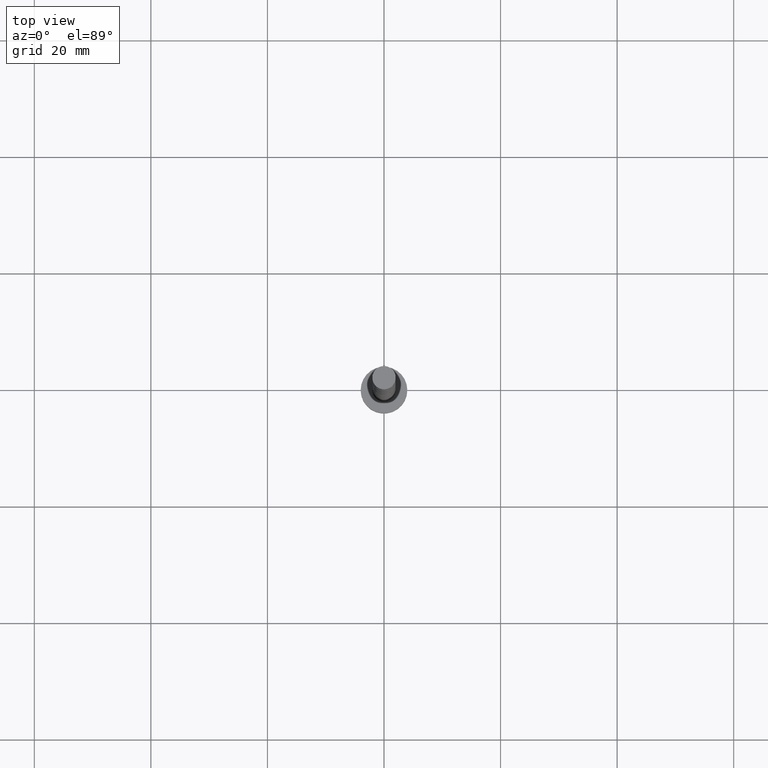
[diagram: clean part render]
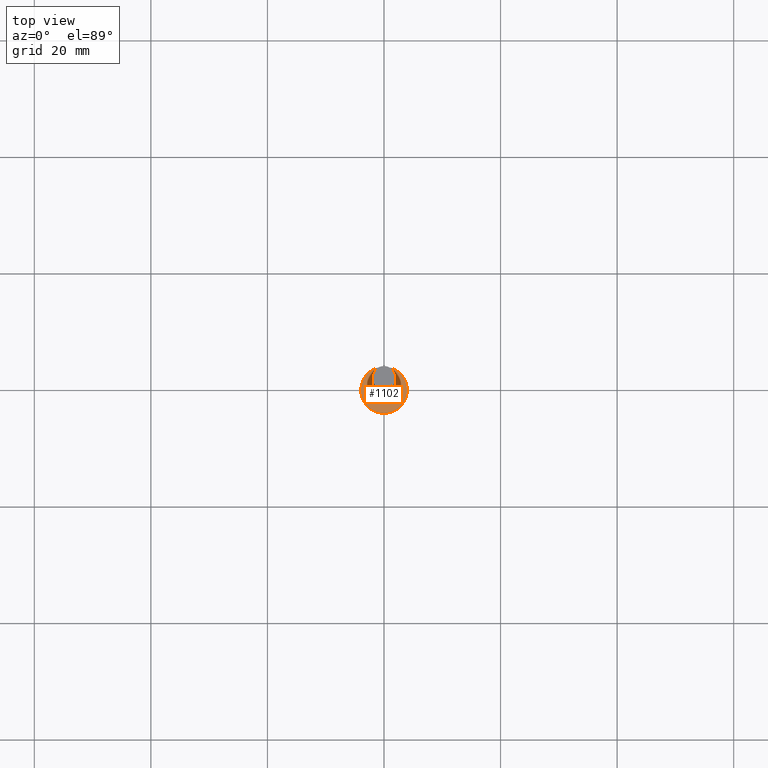
[diagram: same view with one face highlighted and labeled with its STEP entity id]
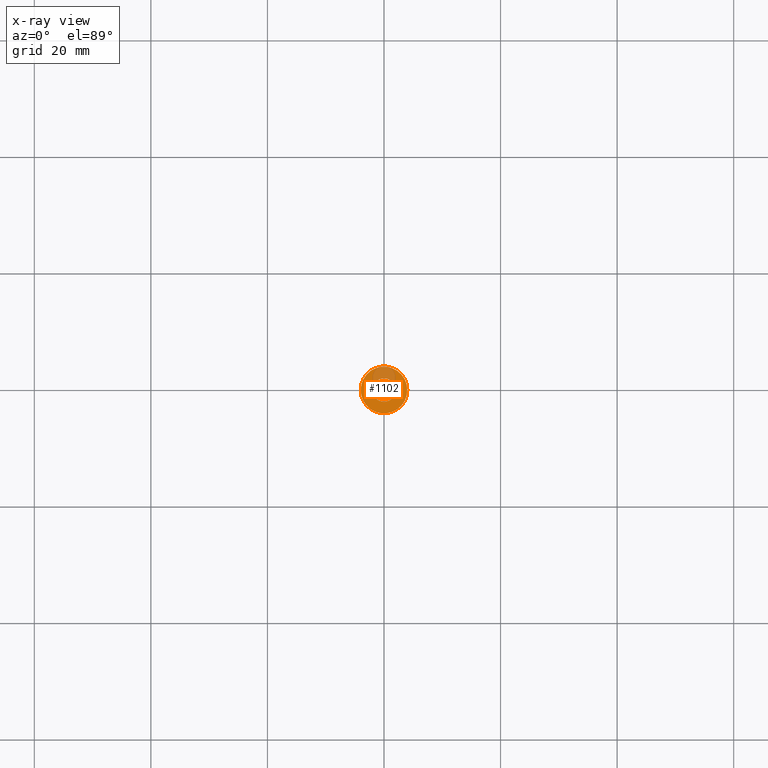
[diagram: x-ray of the same camera — body ghosted, the highlighted face saturated]
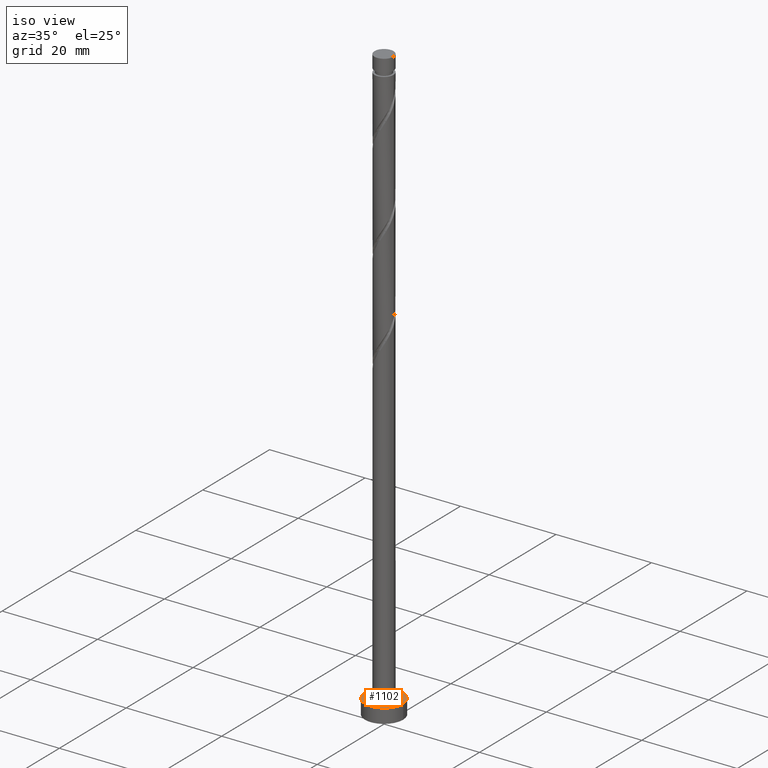
[diagram: same view with one face highlighted and labeled with its STEP entity id]
A machine part, top view. The second image highlights one B-rep face of the part: STEP entity #1102.
The next image is the same camera in x-ray: the body ghosted, the highlighted face saturated — about 22% of this face is hidden behind the body in this view.
A second angle (iso view) of the same face is appended — the face is thin or edge-on in the first view.
In plain terms, the highlighted planar face has unit normal (0, 0, 1).
Its self-contained STEP definition (entity closure, byte-faithful):
#6 = VERTEX_POINT ( 'NONE', #852 ) ;
#22 = DIRECTION ( 'NONE',  ( 1.000000000000000000, 0.000000000000000000, -0.000000000000000000 ) ) ;
#44 = CARTESIAN_POINT ( 'NONE',  ( 2.000000000000000000, 2.449293598294705921E-16, 3.000000000000000000 ) ) ;
#102 = EDGE_CURVE ( 'NONE', #184, #6, #376, .T. ) ;
#123 = ORIENTED_EDGE ( 'NONE', *, *, #696, .F. ) ;
#137 = EDGE_CURVE ( 'NONE', #1291, #1518, #1290, .T. ) ;
#155 = DIRECTION ( 'NONE',  ( 0.000000000000000000, 0.000000000000000000, 1.000000000000000000 ) ) ;
#184 = VERTEX_POINT ( 'NONE', #1333 ) ;
#204 = AXIS2_PLACEMENT_3D ( 'NONE', #519, #1367, #390 ) ;
#309 = ORIENTED_EDGE ( 'NONE', *, *, #137, .F. ) ;
#330 = ORIENTED_EDGE ( 'NONE', *, *, #102, .T. ) ;
#372 = CARTESIAN_POINT ( 'NONE',  ( 0.000000000000000000, 0.000000000000000000, 3.000000000000000000 ) ) ;
#376 = CIRCLE ( 'NONE', #1182, 4.000000000000000000 ) ;
#390 = DIRECTION ( 'NONE',  ( 1.000000000000000000, 0.000000000000000000, 0.000000000000000000 ) ) ;
#402 = EDGE_CURVE ( 'NONE', #6, #184, #480, .T. ) ;
#480 = CIRCLE ( 'NONE', #900, 4.000000000000000000 ) ;
#503 = DIRECTION ( 'NONE',  ( 1.000000000000000000, 0.000000000000000000, 0.000000000000000000 ) ) ;
#511 = FACE_OUTER_BOUND ( 'NONE', #1080, .T. ) ;
#519 = CARTESIAN_POINT ( 'NONE',  ( 0.000000000000000000, 0.000000000000000000, 3.000000000000000000 ) ) ;
#562 = DIRECTION ( 'NONE',  ( 0.000000000000000000, 0.000000000000000000, 1.000000000000000000 ) ) ;
#579 = AXIS2_PLACEMENT_3D ( 'NONE', #1479, #155, #1126 ) ;
#684 = CARTESIAN_POINT ( 'NONE',  ( 0.000000000000000000, 0.000000000000000000, 3.000000000000000000 ) ) ;
#696 = EDGE_CURVE ( 'NONE', #1518, #1291, #1214, .T. ) ;
#791 = CARTESIAN_POINT ( 'NONE',  ( -2.000000000000000000, 0.000000000000000000, 3.000000000000000000 ) ) ;
#846 = DIRECTION ( 'NONE',  ( 0.000000000000000000, 0.000000000000000000, 1.000000000000000000 ) ) ;
#852 = CARTESIAN_POINT ( 'NONE',  ( -4.000000000000000000, 0.000000000000000000, 3.000000000000000000 ) ) ;
#863 = DIRECTION ( 'NONE',  ( 0.000000000000000000, 0.000000000000000000, 1.000000000000000000 ) ) ;
#869 = EDGE_LOOP ( 'NONE', ( #309, #123 ) ) ;
#900 = AXIS2_PLACEMENT_3D ( 'NONE', #684, #562, #1295 ) ;
#1080 = EDGE_LOOP ( 'NONE', ( #1486, #330 ) ) ;
#1092 = FACE_BOUND ( 'NONE', #869, .T. ) ;
#1100 = PLANE ( 'NONE',  #1131 ) ;
#1102 = ADVANCED_FACE ( 'NONE', ( #1092, #511 ), #1100, .T. ) ;
#1126 = DIRECTION ( 'NONE',  ( 1.000000000000000000, 0.000000000000000000, 0.000000000000000000 ) ) ;
#1131 = AXIS2_PLACEMENT_3D ( 'NONE', #372, #846, #22 ) ;
#1182 = AXIS2_PLACEMENT_3D ( 'NONE', #1482, #863, #503 ) ;
#1214 = CIRCLE ( 'NONE', #579, 2.000000000000000000 ) ;
#1291 = VERTEX_POINT ( 'NONE', #791 ) ;
#1290 = CIRCLE ( 'NONE', #204, 2.000000000000000000 ) ;
#1295 = DIRECTION ( 'NONE',  ( 1.000000000000000000, 0.000000000000000000, 0.000000000000000000 ) ) ;
#1333 = CARTESIAN_POINT ( 'NONE',  ( 4.000000000000000000, 4.898587196589412829E-16, 3.000000000000000000 ) ) ;
#1367 = DIRECTION ( 'NONE',  ( 0.000000000000000000, 0.000000000000000000, 1.000000000000000000 ) ) ;
#1479 = CARTESIAN_POINT ( 'NONE',  ( 0.000000000000000000, 0.000000000000000000, 3.000000000000000000 ) ) ;
#1482 = CARTESIAN_POINT ( 'NONE',  ( 0.000000000000000000, 0.000000000000000000, 3.000000000000000000 ) ) ;
#1486 = ORIENTED_EDGE ( 'NONE', *, *, #402, .T. ) ;
#1518 = VERTEX_POINT ( 'NONE', #44 ) ;